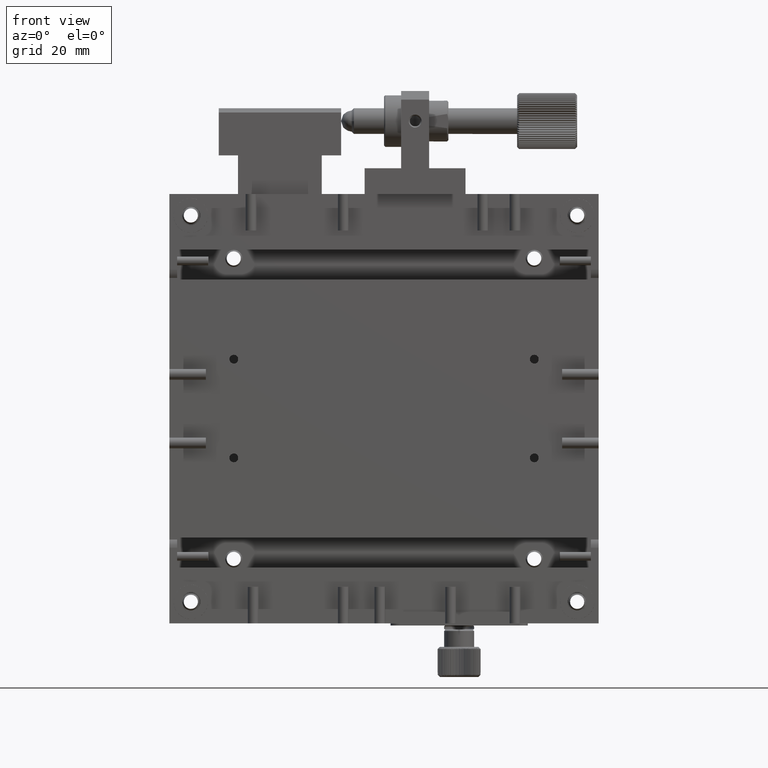
[diagram: clean part render]
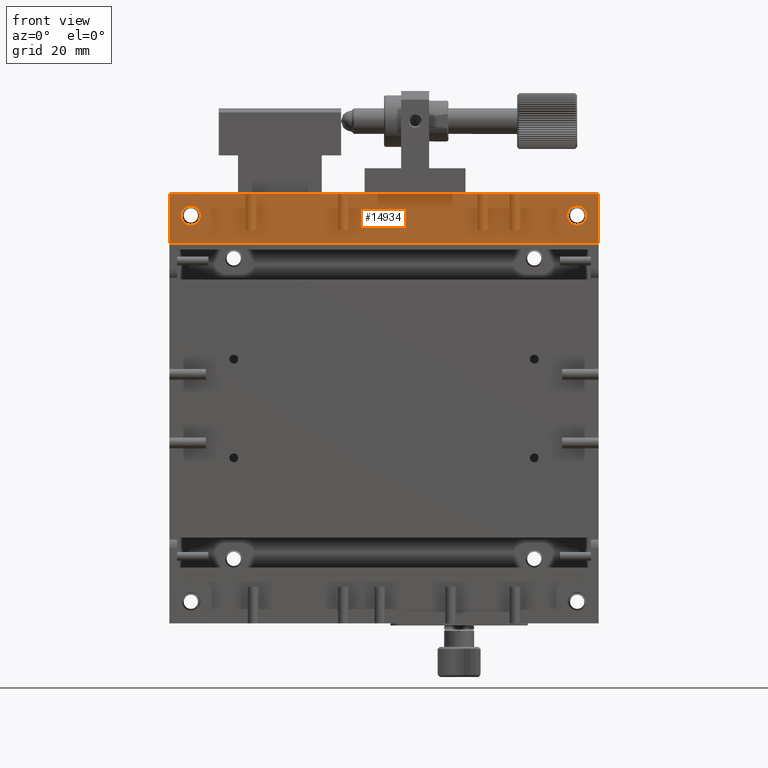
[diagram: same view with one face highlighted and labeled with its STEP entity id]
A machine part, front view. The second image highlights one B-rep face of the part: STEP entity #14934.
In plain terms, the highlighted planar face has unit normal (0, 1, -0).
Its self-contained STEP definition (entity closure, byte-faithful):
#39 = CARTESIAN_POINT ( 'NONE',  ( -32.31566092035743054, -14.79094997660292954, 46.97787956440239299 ) ) ;
#182 = VERTEX_POINT ( 'NONE', #4965 ) ;
#253 = CARTESIAN_POINT ( 'NONE',  ( -30.35407202288385520, -14.79094997660292599, 47.08545383061508716 ) ) ;
#395 = CARTESIAN_POINT ( 'NONE',  ( -29.06365453114191766, -14.79094997660292954, 45.71115611197858186 ) ) ;
#412 = CARTESIAN_POINT ( 'NONE',  ( 57.84829156939325401, -14.79094997660292776, 42.96097275094939505 ) ) ;
#571 = EDGE_CURVE ( 'NONE', #8637, #23967, #19554, .T. ) ;
#654 = CARTESIAN_POINT ( 'NONE',  ( 60.10479459793354806, -14.79094997660293132, 46.84567170052927310 ) ) ;
#678 = CARTESIAN_POINT ( 'NONE',  ( -29.71759488485187006, -14.79094997660292954, 46.70073976646860103 ) ) ;
#784 = CARTESIAN_POINT ( 'NONE',  ( 59.66531980019563974, -14.79094997660292776, 47.07751271149700045 ) ) ;
#919 = CARTESIAN_POINT ( 'NONE',  ( 60.99837305254863651, -14.79094997660292954, 44.43747738086247523 ) ) ;
#1061 = CARTESIAN_POINT ( 'NONE',  ( 59.39422476462042511, -14.79094997660293132, 42.82735507461089952 ) ) ;
#1198 = LINE ( 'NONE', #9874, #21835 ) ;
#1503 = LINE ( 'NONE', #10180, #24468 ) ;
#2047 = B_SPLINE_CURVE_WITH_KNOTS ( 'NONE', 3,
 ( #4510, #26482, #19841, #25922, #13183, #17429, #2668, #24085, #4658, #6935, #17711, #8648, #15591, #8783, #13329, #2382, #24224, #15309, #21951, #7070, #23935, #2234, #2523, #10924, #19560, #11354, #11211, #13040, #4799, #13465, #6509, #412, #21666, #22094, #11073, #22930, #24637, #18547 ),
 .UNSPECIFIED., .F., .F.,
 ( 4, 1, 1, 1, 2, 2, 2, 1, 1, 1, 2, 2, 2, 1, 1, 1, 2, 2, 2, 1, 1, 1, 2, 2, 4 ),
 ( 0.000000000000000000, 0.06249999999999289457, 0.09374999999999114597, 0.1093749999999892308, 0.1171874999999877737, 0.1249999999999863165, 0.2499999999999750200, 0.3124999999999693578, 0.3437499999999665268, 0.3593749999999663602, 0.3671874999999650280, 0.3749999999999636957, 0.4999999999999492628, 0.5624999999999436007, 0.5937499999999426015, 0.6093749999999406031, 0.6171874999999410472, 0.6249999999999414912, 0.7499999999999669154, 0.8124999999999795719, 0.8437499999999859002, 0.8593749999999884537, 0.8671874999999884537, 0.8749999999999884537, 1.000000000000000000 ),
 .UNSPECIFIED. ) ;
#2062 = VERTEX_POINT ( 'NONE', #10946 ) ;
#2234 = CARTESIAN_POINT ( 'NONE',  ( 56.62839772160405971, -14.79094997660292776, 44.40699882742667626 ) ) ;
#2365 = CARTESIAN_POINT ( 'NONE',  ( -28.96858874463273281, -14.79094997660293132, 45.35358492916137152 ) ) ;
#2382 = CARTESIAN_POINT ( 'NONE',  ( 56.72359914207994791, -14.79094997660293309, 45.86423294661430816 ) ) ;
#2405 = CARTESIAN_POINT ( 'NONE',  ( 63.80109935357899786, -14.79094997660293309, 50.00001249999999686 ) ) ;
#2430 = CARTESIAN_POINT ( 'NONE',  ( -31.76126531056359781, -14.79094997660293132, 42.80267127420315632 ) ) ;
#2508 = CARTESIAN_POINT ( 'NONE',  ( -29.02619901444607109, -14.79094997660292776, 45.59302617257456802 ) ) ;
#2523 = CARTESIAN_POINT ( 'NONE',  ( 56.66585323829990983, -14.79094997660292954, 44.28886888802212951 ) ) ;
#2668 = CARTESIAN_POINT ( 'NONE',  ( 58.00620044264355357, -14.79094997660293132, 47.10499517260453928 ) ) ;
#2769 = CARTESIAN_POINT ( 'NONE',  ( 60.50182662004582568, -14.79094997660292599, 43.51870673842912396 ) ) ;
#2792 = CARTESIAN_POINT ( 'NONE',  ( -30.63653598227353925, -14.79094997660292954, 47.19735372579683741 ) ) ;
#3185 = CARTESIAN_POINT ( 'NONE',  ( 59.87468572497160579, -14.79094997660292776, 46.98033019345384531 ) ) ;
#3330 = CARTESIAN_POINT ( 'NONE',  ( 60.91843945131935101, -14.79094997660292954, 45.76144236837036772 ) ) ;
#3809 = CARTESIAN_POINT ( 'NONE',  ( -31.19890064642099503, -14.79094997660293132, 42.75001249999997555 ) ) ;
#3900 = EDGE_CURVE ( 'NONE', #2062, #15956, #15314, .T. ) ;
#3901 = CARTESIAN_POINT ( 'NONE',  ( 13.80109935357899964, -14.79094997660292776, 50.00001249999999686 ) ) ;
#3929 = FACE_OUTER_BOUND ( 'NONE', #25915, .T. ) ;
#4003 = CARTESIAN_POINT ( 'NONE',  ( -31.48519427839219276, -14.79094997660292776, 42.75001249999997555 ) ) ;
#4064 = FACE_BOUND ( 'NONE', #26889, .T. ) ;
#4250 = B_SPLINE_CURVE_WITH_KNOTS ( 'NONE', 3,
 ( #3809, #25767, #27886, #8488, #23650, #10767, #11058, #22218, #26467, #11195, #24067, #22074, #7055, #19821, #11474, #6771, #15429, #15710, #24483, #11338, #2365, #2508, #395, #20104, #26039, #7198, #19684, #15848, #678, #17839, #24206, #9337, #9050, #15288, #253, #2792, #24343, #17693 ),
 .UNSPECIFIED., .F., .F.,
 ( 4, 1, 1, 1, 2, 2, 2, 1, 1, 1, 2, 2, 2, 1, 1, 1, 2, 2, 2, 1, 1, 1, 2, 2, 4 ),
 ( 0.000000000000000000, 0.06249999999999378275, 0.09374999999999114597, 0.1093749999999902578, 0.1171874999999905353, 0.1249999999999908129, 0.2500000000000066613, 0.3125000000000136002, 0.3437500000000170419, 0.3593750000000187628, 0.3671875000000205946, 0.3750000000000224265, 0.5000000000000363043, 0.5625000000000417444, 0.5937500000000458522, 0.6093750000000494049, 0.6171875000000497380, 0.6250000000000500711, 0.7500000000000259792, 0.8125000000000144329, 0.8437500000000086597, 0.8593750000000064393, 0.8671875000000052180, 0.8750000000000039968, 1.000000000000000000 ),
 .UNSPECIFIED. ) ;
#4286 = CARTESIAN_POINT ( 'NONE',  ( -33.23794039546955759, -14.79094997660292954, 45.95282028419082110 ) ) ;
#4416 = CARTESIAN_POINT ( 'NONE',  ( -32.89962791289138266, -14.79094997660292954, 46.48131826156937052 ) ) ;
#4510 = CARTESIAN_POINT ( 'NONE',  ( 58.80109935357900497, -14.79094997660293132, 47.25001250000001107 ) ) ;
#4658 = CARTESIAN_POINT ( 'NONE',  ( 57.68433907963596141, -14.79094997660292776, 46.97787956439976398 ) ) ;
#4799 = CARTESIAN_POINT ( 'NONE',  ( 57.31979359201628199, -14.79094997660292954, 43.29928523352700154 ) ) ;
#4901 = CARTESIAN_POINT ( 'NONE',  ( 60.97380098555390759, -14.79094997660292421, 45.59302617256820866 ) ) ;
#4965 = CARTESIAN_POINT ( 'NONE',  ( -36.19890064642101635, -14.79094997660293132, 38.50001249999998265 ) ) ;
#5179 = CARTESIAN_POINT ( 'NONE',  ( 59.91785962750893901, -14.79094997660293132, 43.02214543558712023 ) ) ;
#5307 = CARTESIAN_POINT ( 'NONE',  ( 60.64675855410876437, -14.79094997660292243, 43.69631725564771330 ) ) ;
#6091 = EDGE_CURVE ( 'NONE', #182, #23967, #1503, .T. ) ;
#6130 = CARTESIAN_POINT ( 'NONE',  ( -31.96036975628322452, -14.79094997660292954, 47.11733707280841088 ) ) ;
#6272 = CARTESIAN_POINT ( 'NONE',  ( -33.42921254820598875, -14.79094997660292776, 44.64644007083200705 ) ) ;
#6415 = CARTESIAN_POINT ( 'NONE',  ( -31.34186909026993106, -14.79094997660292421, 47.25001249999999686 ) ) ;
#6509 = CARTESIAN_POINT ( 'NONE',  ( 57.72751298219878890, -14.79094997660292776, 43.01969480653770717 ) ) ;
#6550 = CARTESIAN_POINT ( 'NONE',  ( -32.04372926995846171, -14.79094997660293132, 42.91457116938491367 ) ) ;
#6692 = CARTESIAN_POINT ( 'NONE',  ( -33.17921833987985281, -14.79094997660292776, 46.07359887138891708 ) ) ;
#6771 = CARTESIAN_POINT ( 'NONE',  ( -29.12140043492284036, -14.79094997660292776, 44.13579205338452738 ) ) ;
#6935 = CARTESIAN_POINT ( 'NONE',  ( 57.42958311352003875, -14.79094997660292599, 46.81037174988406235 ) ) ;
#7055 = CARTESIAN_POINT ( 'NONE',  ( -29.21858295296083341, -14.79094997660293132, 43.92642612861371276 ) ) ;
#7070 = CARTESIAN_POINT ( 'NONE',  ( 56.55106567237071857, -14.79094997660292776, 44.85712919023118417 ) ) ;
#7127 = EDGE_LOOP ( 'NONE', ( #7368, #9651 ) ) ;
#7198 = CARTESIAN_POINT ( 'NONE',  ( -29.09974218071903351, -14.79094997660292599, 45.81019139792533679 ) ) ;
#7310 = ORIENTED_EDGE ( 'NONE', *, *, #17968, .T. ) ;
#7313 = CARTESIAN_POINT ( 'NONE',  ( 60.84013910262486746, -14.79094997660292954, 44.04720471580802865 ) ) ;
#7368 = ORIENTED_EDGE ( 'NONE', *, *, #10557, .T. ) ;
#7453 = CARTESIAN_POINT ( 'NONE',  ( 60.77896641799389954, -14.79094997660293132, 46.11677277392588792 ) ) ;
#7590 = CARTESIAN_POINT ( 'NONE',  ( 59.61127825150474990, -14.79094997660292776, 42.90085403429841904 ) ) ;
#8412 = CARTESIAN_POINT ( 'NONE',  ( -31.55262206022091220, -14.79094997660292776, 47.23026545967382361 ) ) ;
#8471 = PLANE ( 'NONE',  #20960 ) ;
#8488 = CARTESIAN_POINT ( 'NONE',  ( -30.60577523537453004, -14.79094997660292776, 42.82735507461089242 ) ) ;
#8631 = CARTESIAN_POINT ( 'NONE',  ( -31.19890064642099503, -14.79094997660293132, 47.25001250000001107 ) ) ;
#8637 = VERTEX_POINT ( 'NONE', #2405 ) ;
#8648 = CARTESIAN_POINT ( 'NONE',  ( 56.95544015303472207, -14.79094997660292599, 46.30370774433777825 ) ) ;
#8690 = CARTESIAN_POINT ( 'NONE',  ( -33.29805911212273628, -14.79094997660292776, 44.18983360207411692 ) ) ;
#8783 = CARTESIAN_POINT ( 'NONE',  ( 56.76205960452678312, -14.79094997660292599, 45.95282028418563414 ) ) ;
#8826 = CARTESIAN_POINT ( 'NONE',  ( -31.79202605747446242, -14.79094997660292776, 47.17266992538908710 ) ) ;
#9050 = CARTESIAN_POINT ( 'NONE',  ( -30.29908171761184477, -14.79094997660292599, 47.06237444625655542 ) ) ;
#9304 = ORIENTED_EDGE ( 'NONE', *, *, #13877, .F. ) ;
#9318 = CARTESIAN_POINT ( 'NONE',  ( 59.70091828238956566, -14.79094997660293132, 47.06237444625561750 ) ) ;
#9337 = CARTESIAN_POINT ( 'NONE',  ( -30.24609286223034132, -14.79094997660292599, 47.03905224904720939 ) ) ;
#9586 = CARTESIAN_POINT ( 'NONE',  ( 61.03141125536725298, -14.79094997660292776, 45.35358492915285922 ) ) ;
#9651 = ORIENTED_EDGE ( 'NONE', *, *, #18242, .T. ) ;
#9871 = CARTESIAN_POINT ( 'NONE',  ( 59.15482076736279993, -14.79094997660292776, 42.76975954032615590 ) ) ;
#9874 = CARTESIAN_POINT ( 'NONE',  ( -36.19890064642101635, -14.79094997660293487, -49.44570660152349717 ) ) ;
#10162 = DIRECTION ( 'NONE',  ( 0.000000000000000000, 0.000000000000000000, -1.000000000000000000 ) ) ;
#10180 = CARTESIAN_POINT ( 'NONE',  ( 63.80109935357899786, -14.79094997660293487, 38.50001249999998265 ) ) ;
#10557 = EDGE_CURVE ( 'NONE', #18228, #22608, #21438, .T. ) ;
#10692 = CARTESIAN_POINT ( 'NONE',  ( -32.15170843061287798, -14.79094997660292599, 42.96097275095245749 ) ) ;
#10767 = CARTESIAN_POINT ( 'NONE',  ( -30.43743153656123823, -14.79094997660292776, 42.88268792719158995 ) ) ;
#10924 = CARTESIAN_POINT ( 'NONE',  ( 56.68375925583864472, -14.79094997660292599, 44.23858263162781412 ) ) ;
#10946 = CARTESIAN_POINT ( 'NONE',  ( 58.80109935357900497, -14.79094997660293132, 42.75001249999997555 ) ) ;
#11058 = CARTESIAN_POINT ( 'NONE',  ( -30.40400173548684748, -14.79094997660292599, 42.89502982739543313 ) ) ;
#11073 = CARTESIAN_POINT ( 'NONE',  ( 57.95627073004132512, -14.79094997660292599, 42.91457116938489946 ) ) ;
#11195 = CARTESIAN_POINT ( 'NONE',  ( -29.82738440635453259, -14.79094997660292954, 43.18965325012543843 ) ) ;
#11211 = CARTESIAN_POINT ( 'NONE',  ( 56.82323228917356062, -14.79094997660293132, 43.88325222605858755 ) ) ;
#11338 = CARTESIAN_POINT ( 'NONE',  ( -28.94886696521273350, -14.79094997660293132, 45.14289580976975458 ) ) ;
#11354 = CARTESIAN_POINT ( 'NONE',  ( 56.70194088787694398, -14.79094997660292776, 44.18983360207494826 ) ) ;
#11452 = CARTESIAN_POINT ( 'NONE',  ( 60.93634546885812142, -14.79094997660292954, 45.71115611197487993 ) ) ;
#11474 = CARTESIAN_POINT ( 'NONE',  ( -29.13653870016317526, -14.79094997660292954, 44.10019357119168149 ) ) ;
#11715 = CARTESIAN_POINT ( 'NONE',  ( 59.59599826451223947, -14.79094997660292776, 42.89502982739543313 ) ) ;
#12319 = FACE_BOUND ( 'NONE', #7127, .T. ) ;
#12399 = ORIENTED_EDGE ( 'NONE', *, *, #6091, .F. ) ;
#12718 = ORIENTED_EDGE ( 'NONE', *, *, #3900, .T. ) ;
#12810 = CARTESIAN_POINT ( 'NONE',  ( -33.28434619746256118, -14.79094997660292776, 45.84483047010169798 ) ) ;
#12812 = DIRECTION ( 'NONE',  ( 1.000000000000000000, 0.000000000000000000, -0.000000000000000000 ) ) ;
#12948 = CARTESIAN_POINT ( 'NONE',  ( -33.26126259267838492, -14.79094997660292954, 45.89983142880926437 ) ) ;
#13040 = CARTESIAN_POINT ( 'NONE',  ( 56.99074010369522370, -14.79094997660292599, 43.62849625993674607 ) ) ;
#13087 = CARTESIAN_POINT ( 'NONE',  ( -33.30389147619272450, -14.79094997660292599, 44.20513420747341371 ) ) ;
#13183 = CARTESIAN_POINT ( 'NONE',  ( 58.08989056082103986, -14.79094997660292776, 47.13523282810402293 ) ) ;
#13236 = CARTESIAN_POINT ( 'NONE',  ( -31.91010943917897080, -14.79094997660292954, 47.13523282810403003 ) ) ;
#13329 = CARTESIAN_POINT ( 'NONE',  ( 56.73873740731944793, -14.79094997660292599, 45.89983142880613798 ) ) ;
#13437 = VECTOR ( 'NONE', #26479, 1000.000000000000000 ) ;
#13465 = CARTESIAN_POINT ( 'NONE',  ( 57.49740410924098200, -14.79094997660292243, 43.15435329945946563 ) ) ;
#13569 = CARTESIAN_POINT ( 'NONE',  ( 61.05113303478727005, -14.79094997660293132, 45.14289580976490868 ) ) ;
#13712 = CARTESIAN_POINT ( 'NONE',  ( 59.64592797711591743, -14.79094997660292776, 47.08545383061508716 ) ) ;
#13877 = EDGE_CURVE ( 'NONE', #25118, #182, #1198, .T. ) ;
#13993 = CARTESIAN_POINT ( 'NONE',  ( 58.80109935357900497, -14.79094997660293132, 47.25001250000001107 ) ) ;
#14131 = CARTESIAN_POINT ( 'NONE',  ( 61.05103199116251744, -14.79094997660292776, 44.71424588047017323 ) ) ;
#14459 = ORIENTED_EDGE ( 'NONE', *, *, #571, .T. ) ;
#14790 = EDGE_CURVE ( 'NONE', #15956, #2062, #2047, .T. ) ;
#14798 = CARTESIAN_POINT ( 'NONE',  ( -33.39617434539439245, -14.79094997660292954, 45.56254761911451112 ) ) ;
#14934 = ADVANCED_FACE ( 'NONE', ( #3929, #12319, #4064 ), #8471, .T. ) ;
#14935 = CARTESIAN_POINT ( 'NONE',  ( -33.17676771083168319, -14.79094997660293132, 43.88325222607188181 ) ) ;
#15075 = CARTESIAN_POINT ( 'NONE',  ( -31.99379955735644288, -14.79094997660292954, 47.10499517260453217 ) ) ;
#15214 = CARTESIAN_POINT ( 'NONE',  ( -31.19890064642099503, -14.79094997660293132, 42.75001249999997555 ) ) ;
#15288 = CARTESIAN_POINT ( 'NONE',  ( -30.33468019980510633, -14.79094997660292776, 47.07751271149749783 ) ) ;
#15309 = CARTESIAN_POINT ( 'NONE',  ( 56.60382565460935922, -14.79094997660292776, 45.56254761911425533 ) ) ;
#15314 = B_SPLINE_CURVE_WITH_KNOTS ( 'NONE', 3,
 ( #24317, #26997, #9871, #1061, #22758, #20623, #11715, #7590, #5179, #15826, #2769, #5307, #20216, #7313, #18090, #20349, #16240, #919, #14131, #13569, #9586, #4901, #11452, #3330, #22606, #18229, #7453, #26862, #20081, #654, #3185, #24459, #9318, #784, #13712, #17946, #26579, #13993 ),
 .UNSPECIFIED., .F., .F.,
 ( 4, 1, 1, 1, 2, 2, 2, 1, 1, 1, 2, 2, 2, 1, 1, 1, 2, 2, 2, 1, 1, 1, 2, 2, 4 ),
 ( 0.000000000000000000, 0.06249999999997632449, 0.09374999999996570799, 0.1093749999999608230, 0.1171874999999598377, 0.1249999999999588385, 0.2499999999999672484, 0.3124999999999704681, 0.3437499999999720779, 0.3593749999999722999, 0.3671874999999723554, 0.3749999999999724665, 0.4999999999999960032, 0.5625000000000078826, 0.5937500000000125455, 0.6093750000000148770, 0.6171875000000159872, 0.6250000000000170974, 0.7499999999999901190, 0.8124999999999776845, 0.8437499999999725775, 0.8593749999999720224, 0.8671874999999729106, 0.8749999999999737987, 1.000000000000000000 ),
 .UNSPECIFIED. ) ;
#15429 = CARTESIAN_POINT ( 'NONE',  ( -29.11345509537921927, -14.79094997660292776, 44.15519452989882154 ) ) ;
#15591 = CARTESIAN_POINT ( 'NONE',  ( 56.82078166011388731, -14.79094997660292599, 46.07359887138002108 ) ) ;
#15710 = CARTESIAN_POINT ( 'NONE',  ( -29.00162694745136704, -14.79094997660292954, 44.43747738087704846 ) ) ;
#15826 = CARTESIAN_POINT ( 'NONE',  ( 60.17261559365453394, -14.79094997660292954, 43.18965325013249412 ) ) ;
#15848 = CARTESIAN_POINT ( 'NONE',  ( -29.38854139655004616, -14.79094997660292954, 46.37152874007206549 ) ) ;
#15956 = VERTEX_POINT ( 'NONE', #18167 ) ;
#16141 = CARTESIAN_POINT ( 'NONE',  ( 63.80109935357899786, -14.79094997660293132, 38.50001249999998265 ) ) ;
#16240 = CARTESIAN_POINT ( 'NONE',  ( 60.88654490462079139, -14.79094997660292421, 44.15519452989972393 ) ) ;
#16692 = CARTESIAN_POINT ( 'NONE',  ( 13.80109935357899964, -14.79094997660292954, 1.249999999342055190E-05 ) ) ;
#16977 = DIRECTION ( 'NONE',  ( 0.000000000000000000, 5.016799831173580724E-17, 1.000000000000000000 ) ) ;
#17051 = CARTESIAN_POINT ( 'NONE',  ( -33.04455984695693616, -14.79094997660292776, 46.30370774434959458 ) ) ;
#17334 = CARTESIAN_POINT ( 'NONE',  ( -32.09871957523088071, -14.79094997660292066, 42.93765055374323936 ) ) ;
#17429 = CARTESIAN_POINT ( 'NONE',  ( 58.03963024371677903, -14.79094997660292954, 47.11733707280840378 ) ) ;
#17693 = CARTESIAN_POINT ( 'NONE',  ( -31.19890064642099503, -14.79094997660293132, 47.25001250000001107 ) ) ;
#17711 = CARTESIAN_POINT ( 'NONE',  ( 57.10037208710387091, -14.79094997660292776, 46.48131826156257063 ) ) ;
#17839 = CARTESIAN_POINT ( 'NONE',  ( -29.89520540207175969, -14.79094997660292421, 46.84567170053280449 ) ) ;
#17851 = CARTESIAN_POINT ( 'NONE',  ( 63.80109935357899786, -14.79094997660293487, 37.00001249999998976 ) ) ;
#17946 = CARTESIAN_POINT ( 'NONE',  ( 59.36346401773032966, -14.79094997660293132, 47.19735372579684451 ) ) ;
#17968 = EDGE_CURVE ( 'NONE', #25118, #8637, #23328, .T. ) ;
#18090 = CARTESIAN_POINT ( 'NONE',  ( 60.86346129983478193, -14.79094997660293132, 44.10019357119004724 ) ) ;
#18167 = CARTESIAN_POINT ( 'NONE',  ( 58.80109935357900497, -14.79094997660293132, 47.25001250000001107 ) ) ;
#18228 = VERTEX_POINT ( 'NONE', #8631 ) ;
#18229 = CARTESIAN_POINT ( 'NONE',  ( 60.90025781928046200, -14.79094997660292776, 45.81019139792598338 ) ) ;
#18242 = EDGE_CURVE ( 'NONE', #22608, #18228, #4250, .T. ) ;
#18547 = CARTESIAN_POINT ( 'NONE',  ( 58.80109935357900497, -14.79094997660293132, 42.75001249999997555 ) ) ;
#19462 = CARTESIAN_POINT ( 'NONE',  ( -33.44883328400825917, -14.79094997660292776, 45.28577911954706536 ) ) ;
#19554 = LINE ( 'NONE', #17851, #13437 ) ;
#19560 = CARTESIAN_POINT ( 'NONE',  ( 56.69610852380681365, -14.79094997660292599, 44.20513420747457900 ) ) ;
#19604 = CARTESIAN_POINT ( 'NONE',  ( -32.06312109303728164, -14.79094997660293132, 42.92251228850241063 ) ) ;
#19684 = CARTESIAN_POINT ( 'NONE',  ( -29.22103358201432854, -14.79094997660292954, 46.11677277393613394 ) ) ;
#19821 = CARTESIAN_POINT ( 'NONE',  ( -29.15986089737164733, -14.79094997660292954, 44.04720471581071450 ) ) ;
#19841 = CARTESIAN_POINT ( 'NONE',  ( 58.44737793977907359, -14.79094997660292776, 47.23026545967383072 ) ) ;
#20081 = CARTESIAN_POINT ( 'NONE',  ( 60.28240511515115685, -14.79094997660292776, 46.70073976646656888 ) ) ;
#20104 = CARTESIAN_POINT ( 'NONE',  ( -29.08156054868064899, -14.79094997660292776, 45.76144236837262724 ) ) ;
#20216 = CARTESIAN_POINT ( 'NONE',  ( 60.78141704703320869, -14.79094997660292776, 43.92642612860908002 ) ) ;
#20349 = CARTESIAN_POINT ( 'NONE',  ( 60.87859956507605119, -14.79094997660292954, 44.13579205338368894 ) ) ;
#20623 = CARTESIAN_POINT ( 'NONE',  ( 59.56256846343702449, -14.79094997660293132, 42.88268792719158995 ) ) ;
#20960 = AXIS2_PLACEMENT_3D ( 'NONE', #16692, #25480, #16977 ) ;
#21438 = B_SPLINE_CURVE_WITH_KNOTS ( 'NONE', 3,
 ( #27814, #6415, #8412, #8826, #13236, #6130, #15075, #23711, #39, #25828, #4416, #17051, #6692, #4286, #12948, #26102, #12810, #14798, #19462, #25688, #6272, #23985, #21857, #21573, #13087, #8690, #14935, #23426, #25965, #21442, #27945, #10692, #17334, #19604, #6550, #2430, #4003, #15214 ),
 .UNSPECIFIED., .F., .F.,
 ( 4, 1, 1, 1, 2, 2, 2, 1, 1, 1, 2, 2, 2, 1, 1, 1, 2, 2, 2, 1, 1, 1, 2, 2, 4 ),
 ( 0.000000000000000000, 0.06250000000001219858, 0.09375000000002010891, 0.1093750000000230094, 0.1171875000000239669, 0.1250000000000249245, 0.2500000000000360822, 0.3125000000000406897, 0.3437500000000429656, 0.3593750000000428546, 0.3671875000000421885, 0.3750000000000415223, 0.5000000000000160982, 0.5625000000000033307, 0.5937499999999987788, 0.6093749999999983347, 0.6171874999999967804, 0.6249999999999952260, 0.7499999999999986677, 0.8125000000000014433, 0.8437500000000028866, 0.8593750000000043299, 0.8671875000000049960, 0.8750000000000055511, 1.000000000000000000 ),
 .UNSPECIFIED. ) ;
#21442 = CARTESIAN_POINT ( 'NONE',  ( -32.50259589077302280, -14.79094997660292776, 43.15435329946645737 ) ) ;
#21446 = CARTESIAN_POINT ( 'NONE',  ( -36.19890064642102345, -14.79094997660293309, 50.00001249999999686 ) ) ;
#21463 = ORIENTED_EDGE ( 'NONE', *, *, #14790, .T. ) ;
#21573 = CARTESIAN_POINT ( 'NONE',  ( -33.31624074416048131, -14.79094997660292421, 44.23858263162562565 ) ) ;
#21666 = CARTESIAN_POINT ( 'NONE',  ( 57.90128042477279280, -14.79094997660292243, 42.93765055374139195 ) ) ;
#21835 = VECTOR ( 'NONE', #10162, 1000.000000000000000 ) ;
#21857 = CARTESIAN_POINT ( 'NONE',  ( -33.33414676169867619, -14.79094997660293132, 44.28886888801853416 ) ) ;
#21951 = CARTESIAN_POINT ( 'NONE',  ( 56.55116671599548539, -14.79094997660292776, 45.28577911953760093 ) ) ;
#22074 = CARTESIAN_POINT ( 'NONE',  ( -29.35324144588329531, -14.79094997660292421, 43.69631725565388081 ) ) ;
#22094 = CARTESIAN_POINT ( 'NONE',  ( 57.93687890696466525, -14.79094997660292776, 42.92251228850143718 ) ) ;
#22218 = CARTESIAN_POINT ( 'NONE',  ( -30.38872174849538510, -14.79094997660292421, 42.90085403429813482 ) ) ;
#22606 = CARTESIAN_POINT ( 'NONE',  ( 60.90609018335116787, -14.79094997660292599, 45.79489079252449102 ) ) ;
#22608 = VERTEX_POINT ( 'NONE', #25747 ) ;
#22758 = CARTESIAN_POINT ( 'NONE',  ( 59.51230814632990018, -14.79094997660292599, 42.86479217189596369 ) ) ;
#22930 = CARTESIAN_POINT ( 'NONE',  ( 58.23873468944024268, -14.79094997660293132, 42.80267127420317053 ) ) ;
#22939 = VECTOR ( 'NONE', #23836, 1000.000000000000000 ) ;
#23328 = LINE ( 'NONE', #3901, #22939 ) ;
#23426 = CARTESIAN_POINT ( 'NONE',  ( -33.00925989628879620, -14.79094997660292776, 43.62849625992877378 ) ) ;
#23650 = CARTESIAN_POINT ( 'NONE',  ( -30.48769185366714396, -14.79094997660292776, 42.86479217189597080 ) ) ;
#23711 = CARTESIAN_POINT ( 'NONE',  ( -32.00907954434632785, -14.79094997660292599, 47.09917096570219996 ) ) ;
#23836 = DIRECTION ( 'NONE',  ( 1.000000000000000000, -0.000000000000000000, 0.000000000000000000 ) ) ;
#23935 = CARTESIAN_POINT ( 'NONE',  ( 56.57078745179072854, -14.79094997660292776, 44.64644007084029198 ) ) ;
#23967 = VERTEX_POINT ( 'NONE', #16141 ) ;
#23985 = CARTESIAN_POINT ( 'NONE',  ( -33.37160227839347471, -14.79094997660292421, 44.40699882742045901 ) ) ;
#24067 = CARTESIAN_POINT ( 'NONE',  ( -29.49817337994961974, -14.79094997660293309, 43.51870673843266246 ) ) ;
#24085 = CARTESIAN_POINT ( 'NONE',  ( 57.99092045565406295, -14.79094997660292599, 47.09917096570238471 ) ) ;
#24206 = CARTESIAN_POINT ( 'NONE',  ( -30.12531427503235903, -14.79094997660292954, 46.98033019345649564 ) ) ;
#24224 = CARTESIAN_POINT ( 'NONE',  ( 56.71565380253721145, -14.79094997660292776, 45.84483047010171219 ) ) ;
#24317 = CARTESIAN_POINT ( 'NONE',  ( 58.80109935357900497, -14.79094997660293132, 42.75001249999997555 ) ) ;
#24343 = CARTESIAN_POINT ( 'NONE',  ( -30.91260701444493719, -14.79094997660292954, 47.25001250000001107 ) ) ;
#24459 = CARTESIAN_POINT ( 'NONE',  ( 59.75390713777196794, -14.79094997660292421, 47.03905224904563909 ) ) ;
#24468 = VECTOR ( 'NONE', #12812, 1000.000000000000000 ) ;
#24483 = CARTESIAN_POINT ( 'NONE',  ( -28.94896800883748966, -14.79094997660292954, 44.71424588046046722 ) ) ;
#24637 = CARTESIAN_POINT ( 'NONE',  ( 58.51480572161165838, -14.79094997660293132, 42.75001249999998265 ) ) ;
#25118 = VERTEX_POINT ( 'NONE', #21446 ) ;
#25480 = DIRECTION ( 'NONE',  ( 0.000000000000000000, 1.000000000000000000, -5.016799831173580724E-17 ) ) ;
#25688 = CARTESIAN_POINT ( 'NONE',  ( -33.44893432762739849, -14.79094997660292599, 44.85712919022644485 ) ) ;
#25747 = CARTESIAN_POINT ( 'NONE',  ( -31.19890064642099503, -14.79094997660293132, 42.75001249999997555 ) ) ;
#25767 = CARTESIAN_POINT ( 'NONE',  ( -31.05593220257742360, -14.79094997660293132, 42.75001249999998265 ) ) ;
#25828 = CARTESIAN_POINT ( 'NONE',  ( -32.57041688648949673, -14.79094997660292599, 46.81037174987052651 ) ) ;
#25915 = EDGE_LOOP ( 'NONE', ( #12399, #9304, #7310, #14459 ) ) ;
#25922 = CARTESIAN_POINT ( 'NONE',  ( 58.20797394252554824, -14.79094997660292776, 47.17266992538909420 ) ) ;
#25965 = CARTESIAN_POINT ( 'NONE',  ( -32.68020640799172583, -14.79094997660293309, 43.29928523353100189 ) ) ;
#26039 = CARTESIAN_POINT ( 'NONE',  ( -29.09390981664883213, -14.79094997660292776, 45.79489079252565631 ) ) ;
#26102 = CARTESIAN_POINT ( 'NONE',  ( -33.27640085791892233, -14.79094997660292954, 45.86423294661595662 ) ) ;
#26467 = CARTESIAN_POINT ( 'NONE',  ( -30.08214037248891870, -14.79094997660292599, 43.02214543559126270 ) ) ;
#26479 = DIRECTION ( 'NONE',  ( 0.000000000000000000, 0.000000000000000000, -1.000000000000000000 ) ) ;
#26482 = CARTESIAN_POINT ( 'NONE',  ( 58.65813090973007604, -14.79094997660293132, 47.25001250000001818 ) ) ;
#26579 = CARTESIAN_POINT ( 'NONE',  ( 59.08739298555889974, -14.79094997660292776, 47.25001250000001818 ) ) ;
#26862 = CARTESIAN_POINT ( 'NONE',  ( 60.61145860344390002, -14.79094997660292599, 46.37152874007612269 ) ) ;
#26889 = EDGE_LOOP ( 'NONE', ( #21463, #12718 ) ) ;
#26997 = CARTESIAN_POINT ( 'NONE',  ( 58.94406779741871816, -14.79094997660292954, 42.75001249999998265 ) ) ;
#27814 = CARTESIAN_POINT ( 'NONE',  ( -31.19890064642099503, -14.79094997660293132, 47.25001250000001107 ) ) ;
#27886 = CARTESIAN_POINT ( 'NONE',  ( -30.84517923263046058, -14.79094997660292421, 42.76975954032617011 ) ) ;
#27945 = CARTESIAN_POINT ( 'NONE',  ( -32.27248701781171292, -14.79094997660292954, 43.01969480654294387 ) ) ;